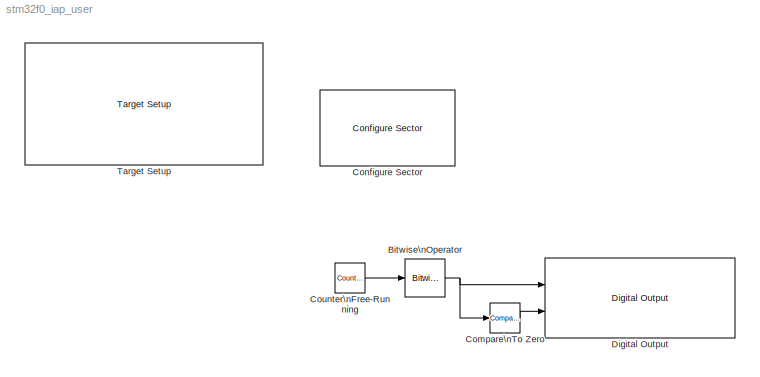
MODEL stm32f0_iap_user
KIND model
CONFIG PreLoadFcn = waijung.modelPreload; % Required for working with Waijung Blockset. Do not remove.
BLOCK [Reference] Bitwise\nOperator  REF=simulink/Logic and Bit\nOperations/Bitwise\nOperator
  BitMask = 1
  BitMaskRealWorld = Stored Integer
  NumInputPorts = 1
  Ports = [1, 1]
  SourceBlock = simulink/Logic and Bit\nOperations/Bitwise\nOperator
  SourceType = Bitwise Operator
  UseBitMask = on
  logicop = AND
BLOCK [Reference] Compare\nTo Zero  REF=simulink/Logic and Bit\nOperations/Compare\nTo Zero
  FunctionWithSeparateData = off
  LogicOutDataTypeMode = uint8
  Ports = [1, 1]
  RTWMemSecDataConstants = Inherit from model
  RTWMemSecDataInternal = Inherit from model
  RTWMemSecDataParameters = Inherit from model
  RTWMemSecFuncExecute = Inherit from model
  RTWMemSecFuncInitTerm = Inherit from model
  ShowPortLabels = FromPortIcon
  SourceBlock = simulink/Logic and Bit\nOperations/Compare\nTo Zero
  SourceType = Compare To Zero
  SystemSampleTime = -1
  ZeroCross = off
  relop = ==
BLOCK [Reference] Configure Sector  REF=stm32f0_boot_lib/Configure Sector
  Ports = []
  SourceBlock = stm32f0_boot_lib/Configure Sector
  SourceType = stm32f0_boot
  blockid = ConfigureSector
  compat = 0
  conf = Configure
  confstr = [\"8020000\",\"5\",\"8004000\"]
  enableisr = off
  flashlength = 0xD000
  flashorigin = 0x8004000
  inputarray = []
  inputlabelarray = {}
  outputarray = []
  outputlabelarray = {}
  sampletime = -1
  sampletimestr = 0.1
  usersector = Sector 5: 0x08020000 - 0x0803FFFF
BLOCK [Reference] Counter\nFree-Running  REF=simulink/Sources/Counter\nFree-Running
  FunctionWithSeparateData = off
  NumBits = 16
  Ports = [0, 1]
  RTWMemSecDataConstants = Inherit from model
  RTWMemSecDataInternal = Inherit from model
  RTWMemSecDataParameters = Inherit from model
  RTWMemSecFuncExecute = Inherit from model
  RTWMemSecFuncInitTerm = Inherit from model
  ShowPortLabels = FromPortIcon
  SourceBlock = simulink/Sources/Counter\nFree-Running
  SourceType = Counter Free-Running
  SystemSampleTime = -1
  tsamp = -1
BLOCK [Reference] Digital Output  REF=stm32f0_io_lib/Digital Output
  Ports = [2]
  SourceBlock = stm32f0_io_lib/Digital Output
  SourceType = stm32f0_digital_output
  bitbandingstr = \n#define DigitalOutput_B14 Peripheral_BB(GPIOB->ODR, 14)  /* Output pin */\n#define DigitalOutput_B15 Peripheral_BB(GPIOB->ODR, 15)  /* Output pin */
  blockid = DigitalOutput
  cinputportlabel = In1, In2
  coutputportlabel = 0
  enablecustomportlabel = off
  pinstr = GPIO_Pin_14 | GPIO_Pin_15
  port = B
  porttype = Push Pull
  porttypestr = PP
  sampletime = 0.1
  sampletimestr = 0.1
  speed = 2
  use_bitband = off
  use_pin0 = off
  use_pin1 = off
  use_pin10 = off
  use_pin11 = off
  use_pin12 = off
  use_pin13 = off
  use_pin14 = on
  use_pin15 = on
  use_pin2 = off
  use_pin3 = off
  use_pin4 = off
  use_pin5 = off
  use_pin6 = off
  use_pin7 = off
  use_pin8 = off
  use_pin9 = off
  usedpinarray = [0  0  0  0  0  0  0  0  0  0  0  0  0  0  1  1]
BLOCK [Reference] Target Setup  REF=stm32f0_device_config_lib/Target Setup
  Ports = []
  Priority = 100
  SourceBlock = stm32f0_device_config_lib/Target Setup
  SourceType = stm32f0_target_setup
  assemblercontrolstr = $(patsubst %, -I%, .) -mcpu=cortex-m0 -mtune=cortex-m0 -mthumb -Wall -O3 -Wa,-amhls=$(<:.s=.lst) -D__STACK_SIZE=$(STACK_SIZE) -D__HEAP_SIZE=$(HEAP_SIZE)
  blockid = TargetSetup
  clockconfig = STM32F072B-DISCO Default (HSIOSC-8MHz/HCLK-48MHz)
  compiler = GNU ARM
  compilercontrolstr = $(patsubst %, -I%, .) -mcpu=cortex-m0 -mthumb -mabi=aapcs -Wall -O3 -mfloat-abi=soft -ffunction-sections -fdata-sections -fno-strict-aliasing -fno-builtin --short-enums
  editctrlstr = off
  enableautocompiledownload = on
  execprofile = None
  flashlength = 0xD000
  flashorigin = 0x8004000
  fullchiperase = off
  hclk = 48000000
  heapsize = 0x200
  hseval = 8000000
  lastprofileruart = 3
  linkercontrolstr = -T$(LD_SCRIPT) -Wl,-Map=$(MAP),--cref,--no-warn-mismatch -mcpu=cortex-m0 -mthumb  -Wall -O3 -mabi=aapcs -lc -specs=nosys.specs
  manualsetsampletime = off
  mcu = STM32F072CB (LQFP48)
  mcustr = STM32F072CB
  previous_compiler = GNU ARM
  profilerbaud = 500000
  profilerinitstr = 0.1,48000000,4800000,500000,0
  profilertxpin = Not used
  profileruart = 3
  programmerinterface = None
  ramlength = 16k
  ramorigin = 0x20000000
  runafterdownload = on
  sampletime = 0.1
  showmemoryconfiguration = off
  stacksize = 0x400
  stdlib = STM32F072
  system_stm32f0xx_c_path = <path>
  systickreloadvalue = 4800000
  useextram = off
NET Bitwise\nOperator:1 -> Compare\nTo Zero:1, Digital Output:1
LINE Compare\nTo Zero:1 -> Digital Output:2
LINE Counter\nFree-Running:1 -> Bitwise\nOperator:1
note: NET lines group one-source signal fan-out (src -> all destinations, sorted); 1:1 wires keep LINE
note: 1 file-system path scrubbed to <path> (not preserved elsewhere — flat text is the only slx artifact)
